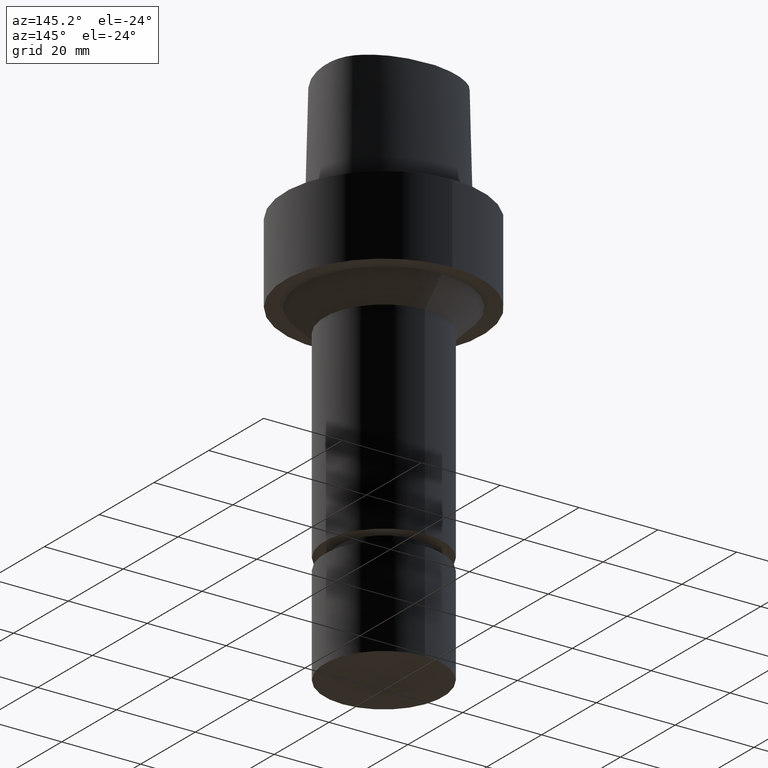
[diagram: clean part render]
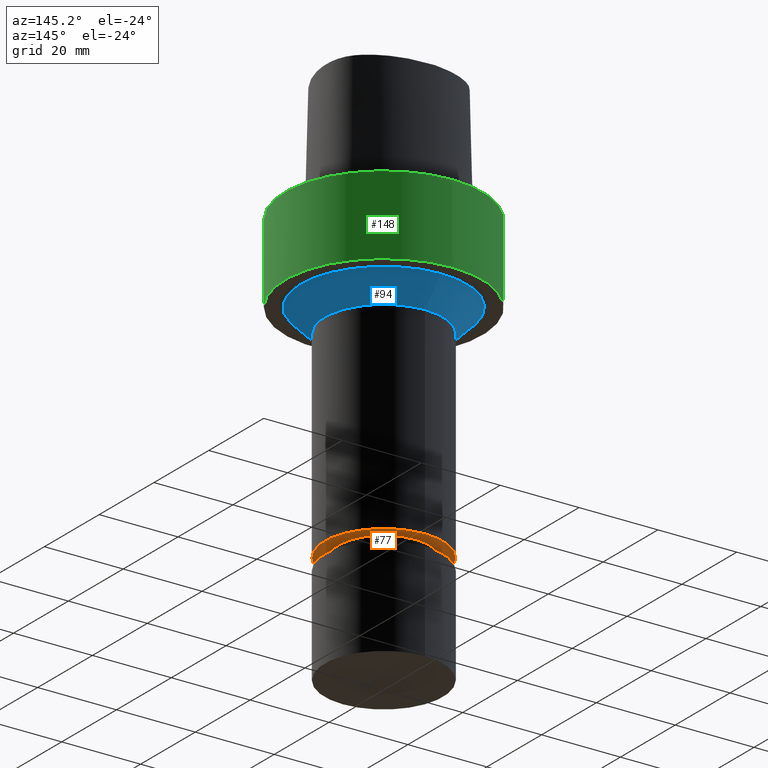
[diagram: same view with three faces highlighted in distinct colors, each labeled with its STEP entity id]
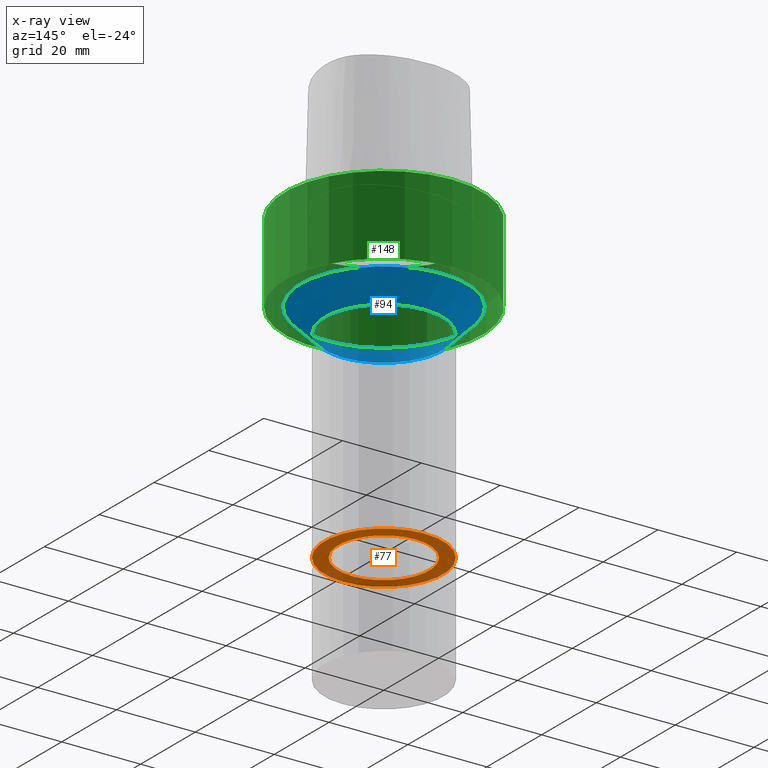
[diagram: x-ray of the same camera — body ghosted, the three highlighted faces saturated]
A machine part, auxiliary view with three faces highlighted in distinct colors.
The next image is the same camera in x-ray (body ghosted, the three faces saturated) — at least one of them is partly hidden behind the body in this view.
Their STEP definitions:

[orange] entity #77 — the highlighted planar face has unit normal (0, 0, -1).
#77=ADVANCED_FACE('Unnamed[1]',(#185,#186),#187,.T.);
#113=EDGE_CURVE('Unnamed[1]',#241,#241,#242,.T.);
#145=EDGE_CURVE('Unnamed[1]',#286,#286,#287,.T.);
#185=FACE_BOUND('',#421,.T.);
#186=FACE_OUTER_BOUND('',#422,.T.);
#187=PLANE('',#423);
#241=VERTEX_POINT('',#537);
#242=CIRCLE('',#538,11.4999999999907);
#286=VERTEX_POINT('',#981);
#287=CIRCLE('',#982,15.0000000000003);
#421=EDGE_LOOP('',(#1005));
#422=EDGE_LOOP('',(#1006));
#423=AXIS2_PLACEMENT_3D('',#1007,#1008,#1009);
#537=CARTESIAN_POINT('',(4.72101341071305E-015,11.4999999999907,-77.1000000000001));
#538=AXIS2_PLACEMENT_3D('',#1066,#1067,#1068);
#981=CARTESIAN_POINT('',(4.72101341071301E-015,15.0000000000003,-77.0999999999993));
#982=AXIS2_PLACEMENT_3D('',#1110,#1111,#1112);
#1005=ORIENTED_EDGE('',*,*,#113,.F.);
#1006=ORIENTED_EDGE('',*,*,#145,.T.);
#1007=CARTESIAN_POINT('',(4.72101341071303E-015,13.2499999999955,-77.0999999999997));
#1008=DIRECTION('',(6.12323399573677E-017,2.07194919100863E-013,-1.0));
#1009=DIRECTION('',(-1.26918568765541E-029,1.0,2.07194919100863E-013));
#1066=CARTESIAN_POINT('',(4.72101341071305E-015,9.4420268214261E-015,-77.1000000000001));
#1067=DIRECTION('',(6.12323399573677E-017,1.22464679914735E-016,-1.0));
#1068=DIRECTION('',(-1.23259516440783E-032,1.0,1.22464679914735E-016));
#1110=CARTESIAN_POINT('',(4.72101341071301E-015,9.44202682142601E-015,-77.0999999999993));
#1111=DIRECTION('',(6.12323399573677E-017,1.22464679914735E-016,-1.0));
#1112=DIRECTION('',(-1.23259516440783E-032,1.0,1.22464679914735E-016));

[blue] entity #94 — the highlighted conical surface has half-angle 45 deg.
#94=ADVANCED_FACE('Unnamed[1]',(#211,#212),#213,.T.);
#135=EDGE_CURVE('Unnamed[1]',#271,#271,#272,.T.);
#143=EDGE_CURVE('Unnamed[1]',#283,#283,#284,.T.);
#211=FACE_BOUND('',#452,.T.);
#212=FACE_BOUND('',#453,.T.);
#213=CONICAL_SURFACE('',#454,18.0000000000003,0.785398163397448);
#271=VERTEX_POINT('',#961);
#272=CIRCLE('',#962,15.0000000000003);
#283=VERTEX_POINT('',#977);
#284=CIRCLE('',#978,21.0000000000003);
#452=EDGE_LOOP('',(#1033));
#453=EDGE_LOOP('',(#1034));
#454=AXIS2_PLACEMENT_3D('',#1035,#1036,#1037);
#961=CARTESIAN_POINT('',(1.59204083889156E-015,15.0000000000003,-26.0));
#962=AXIS2_PLACEMENT_3D('',#1095,#1096,#1097);
#977=CARTESIAN_POINT('',(1.22464679914735E-015,21.0000000000003,-20.0));
#978=AXIS2_PLACEMENT_3D('',#1107,#1108,#1109);
#1033=ORIENTED_EDGE('',*,*,#135,.F.);
#1034=ORIENTED_EDGE('',*,*,#143,.T.);
#1035=CARTESIAN_POINT('',(1.40834381901946E-015,2.81668763803891E-015,-23.0));
#1036=DIRECTION('',(-6.12323399573676E-017,-1.22464679914735E-016,1.0));
#1037=DIRECTION('',(-1.23259516440783E-032,1.0,1.22464679914735E-016));
#1095=CARTESIAN_POINT('',(1.59204083889156E-015,3.18408167778312E-015,-26.0));
#1096=DIRECTION('',(6.12323399573677E-017,1.22464679914735E-016,-1.0));
#1097=DIRECTION('',(-1.23259516440783E-032,1.0,1.22464679914735E-016));
#1107=CARTESIAN_POINT('',(1.22464679914735E-015,2.44929359829471E-015,-20.0));
#1108=DIRECTION('',(6.12323399573677E-017,1.22464679914735E-016,-1.0));
#1109=DIRECTION('',(-1.23259516440783E-032,1.0,1.22464679914735E-016));

[green] entity #148 — the highlighted cylindrical surface (bore or boss wall) has radius 25 mm, axis along (0, 0, -1).
#137=EDGE_CURVE('Unnamed[1]',#274,#274,#275,.T.);
#139=EDGE_CURVE('Unnamed[1]',#277,#277,#278,.T.);
#148=ADVANCED_FACE('Unnamed[1]',(#290,#291),#292,.T.);
#274=VERTEX_POINT('',#965);
#275=CIRCLE('',#966,25.0);
#277=VERTEX_POINT('',#969);
#278=CIRCLE('',#970,25.0);
#290=FACE_BOUND('',#986,.T.);
#291=FACE_BOUND('',#987,.T.);
#292=CYLINDRICAL_SURFACE('',#988,25.0);
#965=CARTESIAN_POINT('',(1.22464679914735E-015,25.0,-20.0));
#966=AXIS2_PLACEMENT_3D('',#1098,#1099,#1100);
#969=CARTESIAN_POINT('',(-3.08148791101958E-031,25.0,3.06161699786838E-015));
#970=AXIS2_PLACEMENT_3D('',#1101,#1102,#1103);
#986=EDGE_LOOP('',(#1114));
#987=EDGE_LOOP('',(#1115));
#988=AXIS2_PLACEMENT_3D('',#1116,#1117,#1118);
#1098=CARTESIAN_POINT('',(1.22464679914735E-015,2.44929359829471E-015,-20.0));
#1099=DIRECTION('',(6.12323399573677E-017,1.22464679914735E-016,-1.0));
#1100=DIRECTION('',(-1.23259516440783E-032,1.0,1.22464679914735E-016));
#1101=CARTESIAN_POINT('',(0.0,0.0,0.0));
#1102=DIRECTION('',(6.12323399573677E-017,1.22464679914735E-016,-1.0));
#1103=DIRECTION('',(-1.23259516440783E-032,1.0,1.22464679914735E-016));
#1114=ORIENTED_EDGE('',*,*,#137,.F.);
#1115=ORIENTED_EDGE('',*,*,#139,.T.);
#1116=CARTESIAN_POINT('',(6.12323399573677E-016,1.22464679914735E-015,-10.0));
#1117=DIRECTION('',(6.12323399573677E-017,1.22464679914735E-016,-1.0));
#1118=DIRECTION('',(-1.23259516440783E-032,1.0,1.22464679914735E-016));